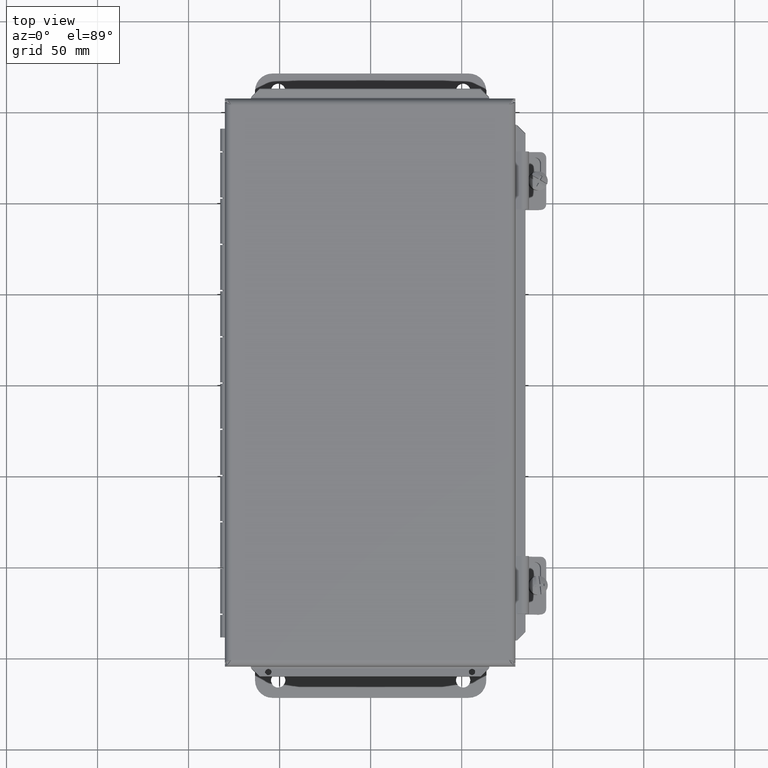
[diagram: clean part render]
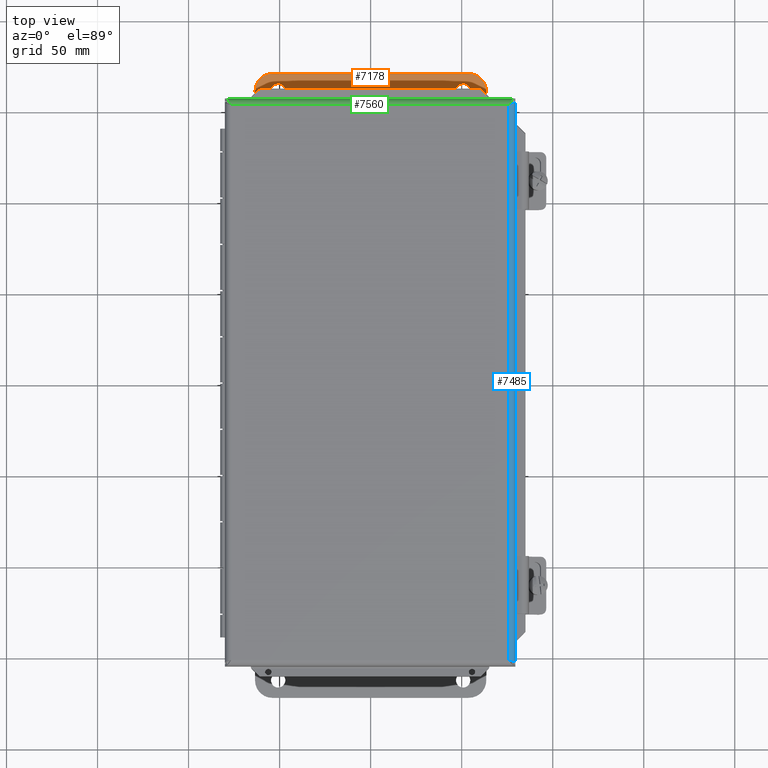
[diagram: same view with three faces highlighted in distinct colors, each labeled with its STEP entity id]
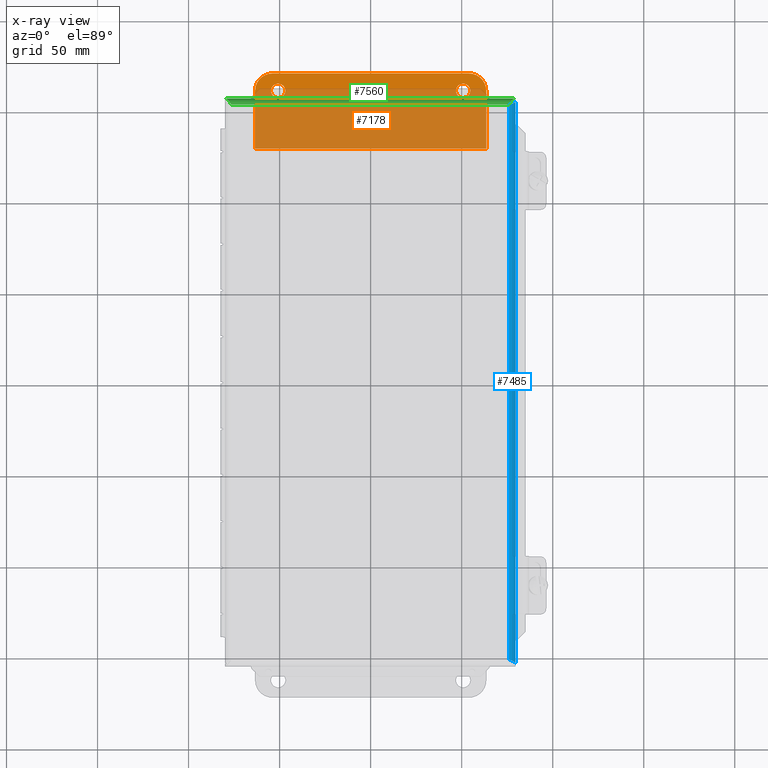
[diagram: x-ray of the same camera — body ghosted, the three highlighted faces saturated]
A machine part, top view with three faces highlighted in distinct colors.
The next image is the same camera in x-ray (body ghosted, the three faces saturated) — at least one of them is partly hidden behind the body in this view.
Their STEP definitions:

[orange] entity #7178 — the highlighted planar face has unit normal (-0, 0, 1).
#540=FACE_BOUND('',#2863,.T.);
#541=FACE_BOUND('',#2864,.T.);
#605=PLANE('',#7834);
#860=LINE('',#10467,#1598);
#865=LINE('',#10481,#1603);
#869=LINE('',#10493,#1607);
#872=LINE('',#10498,#1610);
#1598=VECTOR('',#8460,0.393700787401575);
#1603=VECTOR('',#8473,0.393700787401575);
#1607=VECTOR('',#8485,0.393700787401575);
#1610=VECTOR('',#8490,0.393700787401575);
#2451=FACE_OUTER_BOUND('',#2862,.T.);
#2862=EDGE_LOOP('',(#5221,#5222,#5223,#5224,#5225,#5226));
#2863=EDGE_LOOP('',(#5227));
#2864=EDGE_LOOP('',(#5228));
#3321=CIRCLE('',#7819,0.155);
#3323=CIRCLE('',#7822,0.155);
#3324=CIRCLE('',#7825,0.375);
#3326=CIRCLE('',#7829,0.375);
#3518=VERTEX_POINT('',#10455);
#3520=VERTEX_POINT('',#10461);
#3521=VERTEX_POINT('',#10465);
#3522=VERTEX_POINT('',#10466);
#3525=VERTEX_POINT('',#10474);
#3527=VERTEX_POINT('',#10480);
#3529=VERTEX_POINT('',#10486);
#3531=VERTEX_POINT('',#10492);
#4157=EDGE_CURVE('',#3518,#3518,#3321,.T.);
#4160=EDGE_CURVE('',#3520,#3520,#3323,.T.);
#4161=EDGE_CURVE('',#3521,#3522,#860,.T.);
#4165=EDGE_CURVE('',#3522,#3525,#3324,.T.);
#4168=EDGE_CURVE('',#3525,#3527,#865,.T.);
#4171=EDGE_CURVE('',#3527,#3529,#3326,.T.);
#4174=EDGE_CURVE('',#3529,#3531,#869,.T.);
#4177=EDGE_CURVE('',#3531,#3521,#872,.T.);
#5221=ORIENTED_EDGE('',*,*,#4161,.F.);
#5222=ORIENTED_EDGE('',*,*,#4177,.F.);
#5223=ORIENTED_EDGE('',*,*,#4174,.F.);
#5224=ORIENTED_EDGE('',*,*,#4171,.F.);
#5225=ORIENTED_EDGE('',*,*,#4168,.F.);
#5226=ORIENTED_EDGE('',*,*,#4165,.F.);
#5227=ORIENTED_EDGE('',*,*,#4157,.T.);
#5228=ORIENTED_EDGE('',*,*,#4160,.T.);
#7178=ADVANCED_FACE('',(#2451,#540,#541),#605,.T.);
#7819=AXIS2_PLACEMENT_3D('',#10457,#8449,#8450);
#7822=AXIS2_PLACEMENT_3D('',#10463,#8456,#8457);
#7825=AXIS2_PLACEMENT_3D('',#10475,#8466,#8467);
#7829=AXIS2_PLACEMENT_3D('',#10487,#8478,#8479);
#7834=AXIS2_PLACEMENT_3D('',#10501,#8494,#8495);
#8449=DIRECTION('center_axis',(0.,0.,-1.));
#8450=DIRECTION('ref_axis',(-1.,0.,0.));
#8456=DIRECTION('center_axis',(0.,0.,-1.));
#8457=DIRECTION('ref_axis',(-1.,0.,0.));
#8460=DIRECTION('',(-3.14708888870123E-16,1.,0.));
#8466=DIRECTION('center_axis',(0.,0.,-1.));
#8467=DIRECTION('ref_axis',(-1.16558847729675E-16,1.,0.));
#8473=DIRECTION('',(1.,0.,0.));
#8478=DIRECTION('center_axis',(0.,0.,-1.));
#8479=DIRECTION('ref_axis',(1.,0.,0.));
#8485=DIRECTION('',(0.,-1.,0.));
#8490=DIRECTION('',(-1.,0.,0.));
#8494=DIRECTION('center_axis',(0.,0.,1.));
#8495=DIRECTION('ref_axis',(1.,0.,0.));
#10455=CARTESIAN_POINT('',(4.655,1.25,0.075));
#10457=CARTESIAN_POINT('Origin',(4.5,1.25,0.075));
#10461=CARTESIAN_POINT('',(0.655,1.25,0.075));
#10463=CARTESIAN_POINT('Origin',(0.5,1.25,0.075));
#10465=CARTESIAN_POINT('',(0.,0.,0.075));
#10466=CARTESIAN_POINT('',(-3.93386111087654E-16,1.25,0.075));
#10467=CARTESIAN_POINT('',(-3.93386111087654E-16,1.25,0.075));
#10474=CARTESIAN_POINT('',(0.375,1.625,0.075));
#10475=CARTESIAN_POINT('Origin',(0.375,1.25,0.075));
#10480=CARTESIAN_POINT('',(4.625,1.625,0.075));
#10481=CARTESIAN_POINT('',(4.625,1.625,0.075));
#10486=CARTESIAN_POINT('',(5.,1.25,0.075));
#10487=CARTESIAN_POINT('Origin',(4.625,1.25,0.075));
#10492=CARTESIAN_POINT('',(5.,0.,0.075));
#10493=CARTESIAN_POINT('',(5.,0.,0.075));
#10498=CARTESIAN_POINT('',(0.,0.,0.075));
#10501=CARTESIAN_POINT('Origin',(2.5,0.790263906815817,0.075));

[blue] entity #7485 — the highlighted cylindrical surface (edge-blend (fillet) strip) has radius 3.483 mm, axis along (0, 1, -0).
#174=B_SPLINE_CURVE_WITH_KNOTS('',3,(#12473,#12474,#12475,#12476),
 .UNSPECIFIED.,.F.,.F.,(4,4),(-1.,-0.682641207808864),.UNSPECIFIED.);
#178=B_SPLINE_CURVE_WITH_KNOTS('',3,(#12604,#12605,#12606,#12607,#12608),
 .UNSPECIFIED.,.F.,.F.,(4,1,4),(-0.682298857837908,-0.292413796321778,0.),
 .UNSPECIFIED.);
#193=B_SPLINE_CURVE_WITH_KNOTS('',3,(#12963,#12964,#12965,#12966,#12967),
 .UNSPECIFIED.,.F.,.F.,(4,1,4),(0.,0.389885061762548,0.682298857838218),
 .UNSPECIFIED.);
#195=B_SPLINE_CURVE_WITH_KNOTS('',3,(#13043,#13044,#13045,#13046),
 .UNSPECIFIED.,.F.,.F.,(4,4),(0.682298857838218,1.),.UNSPECIFIED.);
#1487=LINE('',#13022,#2225);
#1488=LINE('',#13048,#2226);
#2225=VECTOR('',#10007,0.393700787401575);
#2226=VECTOR('',#10010,0.393700787401575);
#2422=CYLINDRICAL_SURFACE('',#8284,0.137125000000056);
#2758=FACE_OUTER_BOUND('',#3222,.T.);
#3222=EDGE_LOOP('',(#6801,#6802,#6803,#6804,#6805,#6806));
#3982=VERTEX_POINT('',#12454);
#3984=VERTEX_POINT('',#12471);
#3986=VERTEX_POINT('',#12501);
#4064=VERTEX_POINT('',#12948);
#4065=VERTEX_POINT('',#12961);
#4066=VERTEX_POINT('',#12999);
#4878=EDGE_CURVE('',#3984,#3982,#174,.T.);
#4915=EDGE_CURVE('',#3982,#3986,#178,.T.);
#4990=EDGE_CURVE('',#4065,#4064,#193,.T.);
#5006=EDGE_CURVE('',#4066,#3984,#1487,.T.);
#5007=EDGE_CURVE('',#4064,#4066,#195,.T.);
#5008=EDGE_CURVE('',#3986,#4065,#1488,.T.);
#6801=ORIENTED_EDGE('',*,*,#4878,.F.);
#6802=ORIENTED_EDGE('',*,*,#5006,.F.);
#6803=ORIENTED_EDGE('',*,*,#5007,.F.);
#6804=ORIENTED_EDGE('',*,*,#4990,.F.);
#6805=ORIENTED_EDGE('',*,*,#5008,.F.);
#6806=ORIENTED_EDGE('',*,*,#4915,.F.);
#7485=ADVANCED_FACE('',(#2758),#2422,.T.);
#8284=AXIS2_PLACEMENT_3D('',#13047,#10008,#10009);
#10007=DIRECTION('',(-7.29663146739047E-19,-1.,1.22851022320937E-32));
#10008=DIRECTION('center_axis',(0.,1.,-5.38196304227173E-45));
#10009=DIRECTION('ref_axis',(-1.08948628121845E-15,-5.03600174688906E-45,
1.));
#10010=DIRECTION('',(0.,1.,-5.38196304227173E-45));
#12454=CARTESIAN_POINT('',(3.12390131637721,-6.04588781653045,-0.0124988722943468));
#12471=CARTESIAN_POINT('',(3.14062500000006,-6.065625,-0.0781249999999998));
#12473=CARTESIAN_POINT('Ctrl Pts',(3.14062500000006,-6.065625,-0.0781249999999998));
#12474=CARTESIAN_POINT('Ctrl Pts',(3.14062500000006,-6.05905302834505,-0.0553391204383398));
#12475=CARTESIAN_POINT('Ctrl Pts',(3.13473271047102,-6.05248105669006,-0.0325262515305838));
#12476=CARTESIAN_POINT('Ctrl Pts',(3.12388429874749,-6.0459090850351,-0.0125011117597219));
#12501=CARTESIAN_POINT('',(3.0035,-6.0035,0.0589999999999998));
#12604=CARTESIAN_POINT('Ctrl Pts',(3.12390131638189,-6.04588781654318,-0.0124988722876109));
#12605=CARTESIAN_POINT('Ctrl Pts',(3.11050417942441,-6.03781394672759,0.0120802546791438));
#12606=CARTESIAN_POINT('Ctrl Pts',(3.07350353184261,-6.02368467454667,0.0475692220417063));
#12607=CARTESIAN_POINT('Ctrl Pts',(3.02449486672216,-6.0095554023656,0.0590000000000564));
#12608=CARTESIAN_POINT('Ctrl Pts',(3.0035,-6.00349999999999,0.059000000000056));
#12948=CARTESIAN_POINT('',(3.12390131637724,6.04588781653047,-0.0124988722944));
#12961=CARTESIAN_POINT('',(3.0035,6.0035,0.0589999999999998));
#12963=CARTESIAN_POINT('Ctrl Pts',(3.0035,6.0035,0.059000000000056));
#12964=CARTESIAN_POINT('Ctrl Pts',(3.03149315562956,6.01157386982053,0.0590000000000566));
#12965=CARTESIAN_POINT('Ctrl Pts',(3.08036190757902,6.02570314200197,0.0434964581745927));
#12966=CARTESIAN_POINT('Ctrl Pts',(3.11385346366602,6.03983241418284,0.00593547293366814));
#12967=CARTESIAN_POINT('Ctrl Pts',(3.12390131638192,6.0458878165432,-0.0124988722876641));
#12999=CARTESIAN_POINT('',(3.14062500000006,6.065625,-0.0781249999999905));
#13022=CARTESIAN_POINT('',(3.140625,0.,-0.0781249999999999));
#13043=CARTESIAN_POINT('Ctrl Pts',(3.12384917335872,6.04588781654323,-0.0124363152933147));
#13044=CARTESIAN_POINT('Ctrl Pts',(3.13471999103021,6.0524668776955,-0.0324770328533134));
#13045=CARTESIAN_POINT('Ctrl Pts',(3.14062500000006,6.05904593884776,-0.0553145402300894));
#13046=CARTESIAN_POINT('Ctrl Pts',(3.14062500000006,6.065625,-0.0781249999999905));
#13047=CARTESIAN_POINT('Origin',(3.0035,-6.99353086378051E-16,-0.0781250000000003));
#13048=CARTESIAN_POINT('',(3.0035,-3.00175,0.0589999999999998));

[green] entity #7560 — the highlighted cylindrical surface (edge-blend (fillet) strip) has radius 3.483 mm, axis along (-1, 0, -0).
#189=B_SPLINE_CURVE_WITH_KNOTS('',3,(#12854,#12855,#12856,#12857,#12858,
#12859,#12860),.UNSPECIFIED.,.F.,.F.,(4,3,4),(-0.999999999999996,-0.428571428571426,
0.),.UNSPECIFIED.);
#194=B_SPLINE_CURVE_WITH_KNOTS('',3,(#12991,#12992,#12993,#12994,#12995,
#12996,#12997),.UNSPECIFIED.,.F.,.F.,(4,3,4),(-0.999999999999994,-0.428571428571426,
0.),.UNSPECIFIED.);
#1383=LINE('',#12513,#2121);
#1592=LINE('',#13450,#2330);
#2121=VECTOR('',#9857,0.393700787401575);
#2330=VECTOR('',#10284,0.393700787401575);
#2432=CYLINDRICAL_SURFACE('',#8369,0.137125);
#2833=FACE_OUTER_BOUND('',#3301,.T.);
#3301=EDGE_LOOP('',(#7145,#7146,#7147,#7148));
#3987=VERTEX_POINT('',#12511);
#3988=VERTEX_POINT('',#12512);
#4045=VERTEX_POINT('',#12779);
#4065=VERTEX_POINT('',#12961);
#4883=EDGE_CURVE('',#3987,#3988,#1383,.T.);
#4967=EDGE_CURVE('',#3987,#4045,#189,.T.);
#4993=EDGE_CURVE('',#3988,#4065,#194,.T.);
#5142=EDGE_CURVE('',#4065,#4045,#1592,.T.);
#7145=ORIENTED_EDGE('',*,*,#4883,.F.);
#7146=ORIENTED_EDGE('',*,*,#4967,.T.);
#7147=ORIENTED_EDGE('',*,*,#5142,.F.);
#7148=ORIENTED_EDGE('',*,*,#4993,.F.);
#7560=ADVANCED_FACE('',(#2833),#2432,.T.);
#8369=AXIS2_PLACEMENT_3D('',#13449,#10282,#10283);
#9857=DIRECTION('',(1.,6.05647312811652E-16,-3.15544362088405E-30));
#10282=DIRECTION('center_axis',(-1.,-2.8104394763949E-16,0.));
#10283=DIRECTION('ref_axis',(0.,-5.38196304227173E-45,1.));
#10284=DIRECTION('',(-1.,-2.32846041743982E-16,0.));
#12511=CARTESIAN_POINT('',(-3.140625,6.140625,-0.078125000000002));
#12512=CARTESIAN_POINT('',(3.14062500000001,6.140625,-0.0781250000000054));
#12513=CARTESIAN_POINT('',(-6.99353086378051E-16,6.140625,-0.0781250000000024));
#12779=CARTESIAN_POINT('',(-3.0035,6.0035,0.0590000000000005));
#12854=CARTESIAN_POINT('Ctrl Pts',(-3.14062500000001,6.140625,-0.0781250000000008));
#12855=CARTESIAN_POINT('Ctrl Pts',(-3.11450595238099,6.140625,-0.0370972959406202));
#12856=CARTESIAN_POINT('Ctrl Pts',(-3.08838690476193,6.12094522447941,0.00348857236229868));
#12857=CARTESIAN_POINT('Ctrl Pts',(-3.06226785714291,6.08902871177241,0.0290693000547373));
#12858=CARTESIAN_POINT('Ctrl Pts',(-3.04267857142864,6.06509132724216,0.0482548458240662));
#12859=CARTESIAN_POINT('Ctrl Pts',(-3.02308928571439,6.03427077804455,0.059));
#12860=CARTESIAN_POINT('Ctrl Pts',(-3.0035,6.0035,0.059));
#12961=CARTESIAN_POINT('',(3.0035,6.0035,0.0589999999999998));
#12991=CARTESIAN_POINT('Ctrl Pts',(3.14062500000001,6.140625,-0.0781250000000041));
#12992=CARTESIAN_POINT('Ctrl Pts',(3.11450595238075,6.140625,-0.0370972959406214));
#12993=CARTESIAN_POINT('Ctrl Pts',(3.08838690476191,6.12094522447942,0.00348857236229594));
#12994=CARTESIAN_POINT('Ctrl Pts',(3.06226785714287,6.0890287117724,0.0290693000547352));
#12995=CARTESIAN_POINT('Ctrl Pts',(3.04267857142858,6.06509132724214,0.0482548458240646));
#12996=CARTESIAN_POINT('Ctrl Pts',(3.02308928571419,6.03427077804451,0.0590000000000001));
#12997=CARTESIAN_POINT('Ctrl Pts',(3.0035,6.0035,0.059));
#13449=CARTESIAN_POINT('Origin',(-3.49676543189026E-16,6.0035,-0.0781249999999999));
#13450=CARTESIAN_POINT('',(1.50175,6.0035,0.0589999999999998));